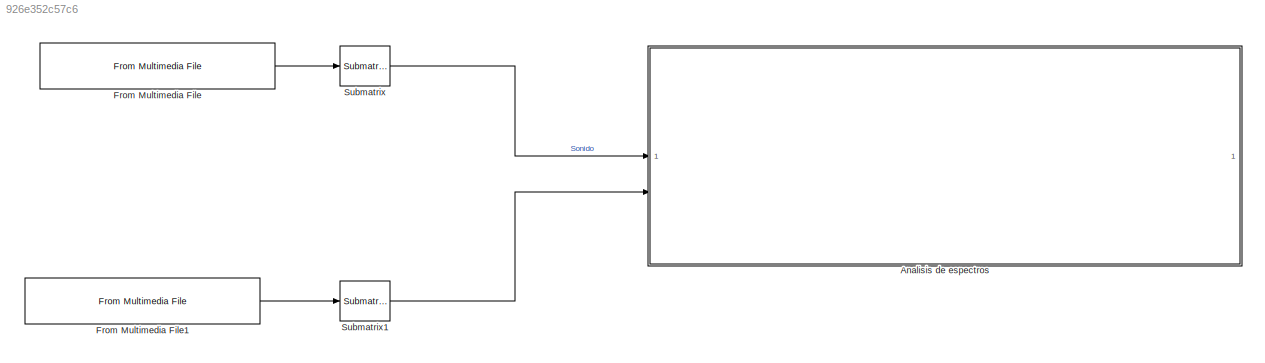
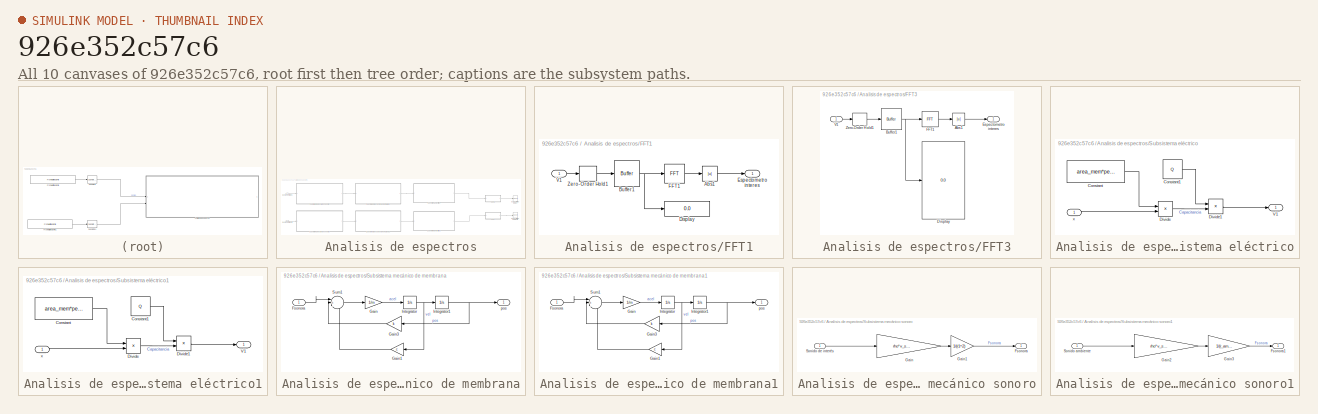
[diagram: thumbnail index - all 10 canvases of the model, root first then tree order]
MODEL slx_926e352c57c6
KIND model
CONFIG AbsTol = auto
CONFIG EnableMultiTasking = off
CONFIG FixedStep = auto
CONFIG MaxStep = auto
CONFIG MinStep = auto
CONFIG RelTol = 1e-3
CONFIG SampleTimeConstraint = Unconstrained
CONFIG SolverName = VariableStepAuto
CONFIG StartTime = 0.0
CONFIG StopTime = 5
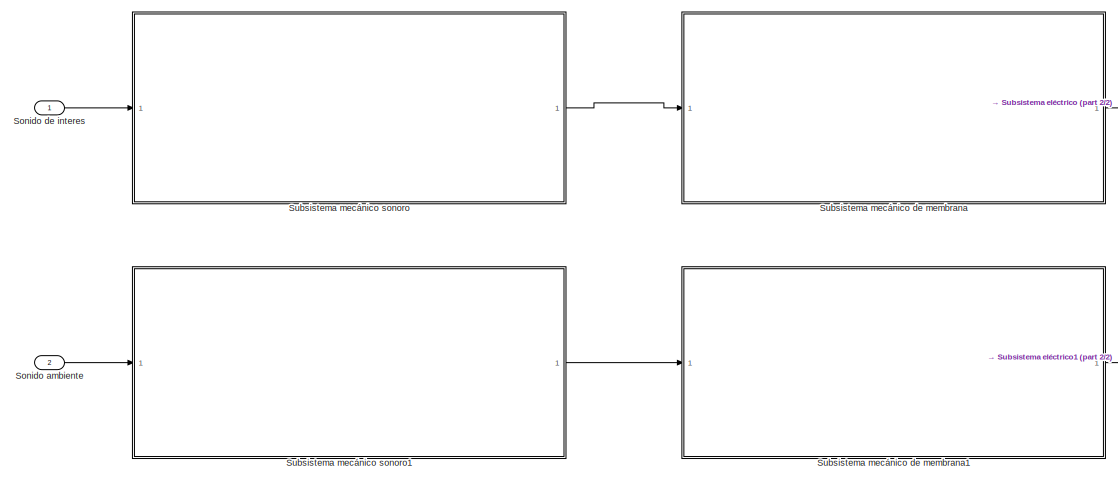
[diagram: Analisis de espectros - part 1/2, left side, full height]
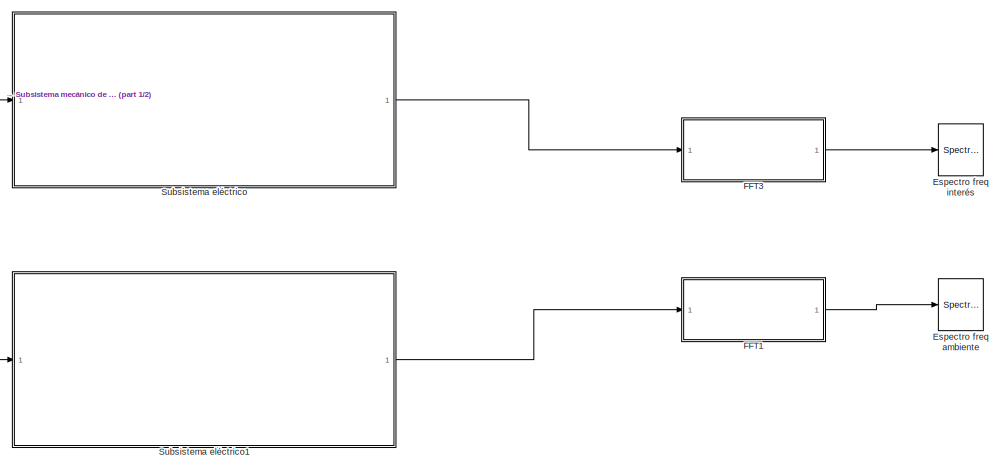
[diagram: Analisis de espectros - part 2/2, right side, full height]
BLOCK [SubSystem] Analisis de espectros
BLOCK [SpectrumAnalyzer] Analisis de espectros/Espectro freq ambiente
  DefaultConfigurationName = spbscopes.SpectrumAnalyzerBlockCfg
  FrequencyInputRBWFromPort = 0
  FrequencyInputRBWPort = 0
  FrequencySpan = Start and stop frequencies
  FrequencyVectorFromPort = 0
  FrequencyVectorPort = 0
  GraphicalSettings = {"GraphicalSettings":{"Style":{"BackgroundColor":[0.1568627450980392,0.1568627450980392,0.1568627450980392],"AxesColor":[0,0,0],"LabelsColor":[0.6862745098039216,0.6862745098039216,0.6862745098039216],"PreserveColors":false,"Visible":[true],"LineStyle":["-"],"LineColor":[[1,1,0.06666666666666667]],"LineWidth":[1.5],"Marker":["none"],"FontSize":"small"},"Cursors":{"Enabled":false,"XLocation":[2,8],...<+831ch>
  InputDomain = Frequency
  IsFrequencyInputMode = 0
  PlotAsTwoSidedSpectrum = off
  SampleRate = 44.1e3
  SampleRateSource = Property
  ScopeFrameLocation = window
  ScopeSpecificationString = spbscopes.SpectrumAnalyzerBlockCfg('CurrentConfiguration', extmgr.ConfigurationSet(extmgr.Configuration('Core','General UI',true),extmgr.Configuration('Core','Source UI',true),extmgr.Configuration('Sources','WiredSimulink',true),extmgr.Configuration('Visuals','Spectrum',true,'AxesProperties',struct('Color',{[0 0 0],[0 0 0]},'XColor',{[0.686274509803922 0.686274509803922 0.686274509803922],[0.68627...<+1720ch>
  SelectedToolstripTab = spectrumAnalyzerToolstrip.spectrumTab
  SpectrumUnits = Auto
  StartFrequency = 20
  StopFrequency = 20e3
  WasSavedAsWebScope = on
  WindowPosition = [2.000000,50.000000,766.000000,785.000000,]
  YLimits = [-28.14249408,253.75918863]
BLOCK [SpectrumAnalyzer] Analisis de espectros/Espectro freq interés
  DefaultConfigurationName = spbscopes.SpectrumAnalyzerBlockCfg
  FrequencyInputRBWFromPort = 0
  FrequencyInputRBWPort = 0
  FrequencySpan = Start and stop frequencies
  FrequencyVectorFromPort = 0
  FrequencyVectorPort = 0
  GraphicalSettings = {"GraphicalSettings":{"Style":{"BackgroundColor":[0.1568627450980392,0.1568627450980392,0.1568627450980392],"AxesColor":[0,0,0],"LabelsColor":[0.6862745098039216,0.6862745098039216,0.6862745098039216],"PreserveColors":false,"Visible":[true],"LineStyle":["-"],"LineColor":[[1,1,0.06666666666666667]],"LineWidth":[1.5],"Marker":["none"],"FontSize":"small"},"Cursors":{"Enabled":false,"XLocation":[2,8],...<+831ch>
  InputDomain = Frequency
  IsFrequencyInputMode = 0
  PlotAsTwoSidedSpectrum = off
  SampleRate = 44.1e3
  SampleRateSource = Property
  ScopeFrameLocation = window
  ScopeSpecificationString = spbscopes.SpectrumAnalyzerBlockCfg('CurrentConfiguration', extmgr.ConfigurationSet(extmgr.Configuration('Core','General UI',true),extmgr.Configuration('Core','Source UI',true),extmgr.Configuration('Sources','WiredSimulink',true),extmgr.Configuration('Visuals','Spectrum',true,'AxesProperties',struct('Color',{[0 0 0],[0 0 0]},'XColor',{[0.686274509803922 0.686274509803922 0.686274509803922],[0.68627...<+1720ch>
  SpectrumUnits = Auto
  StartFrequency = 20
  StopFrequency = 20e3
  WasSavedAsWebScope = on
  WindowPosition = [770.000000,50.000000,766.000000,785.000000,]
  YLimits = [-27.7376388,249.75160585]
BLOCK [SubSystem] Analisis de espectros/FFT1
BLOCK [Abs] Analisis de espectros/FFT1/Abs1
  SaturateOnIntegerOverflow = off
BLOCK [Buffer] Analisis de espectros/FFT1/Buffer1
  N = ventana_fft_analisis
  OutputFrames = off
  V = ventana_fft_analisis-1
BLOCK [Display] Analisis de espectros/FFT1/Display
  Decimation = 1
BLOCK [Outport] Analisis de espectros/FFT1/Espectometro interes
BLOCK [Reference] Analisis de espectros/FFT1/FFT1  REF=dspxfrm3/FFT
  SourceBlock = dspxfrm3/FFT
  SourceType = FFT
BLOCK [Inport] Analisis de espectros/FFT1/V1
BLOCK [ZeroOrderHold] Analisis de espectros/FFT1/Zero-Order Hold1
  SampleTime = zoh_freq_analisis
BLOCK [SubSystem] Analisis de espectros/FFT3
BLOCK [Abs] Analisis de espectros/FFT3/Abs1
  SaturateOnIntegerOverflow = off
BLOCK [Buffer] Analisis de espectros/FFT3/Buffer1
  N = ventana_fft_analisis
  OutputFrames = off
  V = ventana_fft_analisis-1
BLOCK [Display] Analisis de espectros/FFT3/Display
  Decimation = 1
BLOCK [Outport] Analisis de espectros/FFT3/Espectometro interes
BLOCK [Reference] Analisis de espectros/FFT3/FFT1  REF=dspxfrm3/FFT
  SourceBlock = dspxfrm3/FFT
  SourceType = FFT
BLOCK [Inport] Analisis de espectros/FFT3/V1
BLOCK [ZeroOrderHold] Analisis de espectros/FFT3/Zero-Order Hold1
  SampleTime = zoh_freq_analisis
BLOCK [Inport] Analisis de espectros/Sonido ambiente
  Port = 2
BLOCK [Inport] Analisis de espectros/Sonido de interes
BLOCK [SubSystem] Analisis de espectros/Subsistema eléctrico
BLOCK [Constant] Analisis de espectros/Subsistema eléctrico/Constant
  Value = area_mem*perm
BLOCK [Constant] Analisis de espectros/Subsistema eléctrico/Constant1
  Value = Q
BLOCK [Product] Analisis de espectros/Subsistema eléctrico/Divide
  Inputs = */
BLOCK [Product] Analisis de espectros/Subsistema eléctrico/Divide1
  Inputs = */
BLOCK [Outport] Analisis de espectros/Subsistema eléctrico/V1
BLOCK [Inport] Analisis de espectros/Subsistema eléctrico/x
BLOCK [SubSystem] Analisis de espectros/Subsistema eléctrico1
BLOCK [Constant] Analisis de espectros/Subsistema eléctrico1/Constant
  Value = area_mem*perm
BLOCK [Constant] Analisis de espectros/Subsistema eléctrico1/Constant1
  Value = Q
BLOCK [Product] Analisis de espectros/Subsistema eléctrico1/Divide
  Inputs = */
BLOCK [Product] Analisis de espectros/Subsistema eléctrico1/Divide1
  Inputs = */
BLOCK [Outport] Analisis de espectros/Subsistema eléctrico1/V1
BLOCK [Inport] Analisis de espectros/Subsistema eléctrico1/x
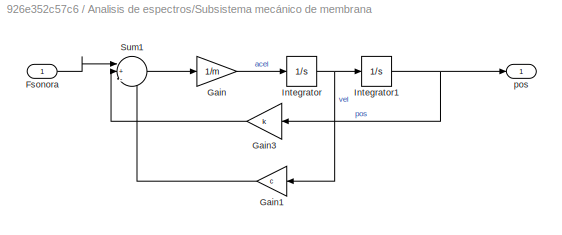
BLOCK [SubSystem] Analisis de espectros/Subsistema mecánico de membrana
BLOCK [Inport] Analisis de espectros/Subsistema mecánico de membrana/Fsonora
BLOCK [Gain] Analisis de espectros/Subsistema mecánico de membrana/Gain
  Gain = 1/m
BLOCK [Gain] Analisis de espectros/Subsistema mecánico de membrana/Gain1
  Gain = c
BLOCK [Gain] Analisis de espectros/Subsistema mecánico de membrana/Gain3
  Gain = k
BLOCK [Integrator] Analisis de espectros/Subsistema mecánico de membrana/Integrator
BLOCK [Integrator] Analisis de espectros/Subsistema mecánico de membrana/Integrator1
BLOCK [Sum] Analisis de espectros/Subsistema mecánico de membrana/Sum1
  Inputs = |+--
BLOCK [Outport] Analisis de espectros/Subsistema mecánico de membrana/pos
BLOCK [SubSystem] Analisis de espectros/Subsistema mecánico de membrana1
BLOCK [Inport] Analisis de espectros/Subsistema mecánico de membrana1/Fsonora
BLOCK [Gain] Analisis de espectros/Subsistema mecánico de membrana1/Gain
  Gain = 1/m
BLOCK [Gain] Analisis de espectros/Subsistema mecánico de membrana1/Gain1
  Gain = c
BLOCK [Gain] Analisis de espectros/Subsistema mecánico de membrana1/Gain3
  Gain = k
BLOCK [Integrator] Analisis de espectros/Subsistema mecánico de membrana1/Integrator
BLOCK [Integrator] Analisis de espectros/Subsistema mecánico de membrana1/Integrator1
BLOCK [Sum] Analisis de espectros/Subsistema mecánico de membrana1/Sum1
  Inputs = |+--
BLOCK [Outport] Analisis de espectros/Subsistema mecánico de membrana1/pos
BLOCK [SubSystem] Analisis de espectros/Subsistema mecánico sonoro
BLOCK [Outport] Analisis de espectros/Subsistema mecánico sonoro/Fsonora
BLOCK [Gain] Analisis de espectros/Subsistema mecánico sonoro/Gain
  Gain = rho*v_sonido*(area_mem)
BLOCK [Gain] Analisis de espectros/Subsistema mecánico sonoro/Gain1
  Gain = 1/(r1^2)
BLOCK [Inport] Analisis de espectros/Subsistema mecánico sonoro/Sonido de interés
BLOCK [SubSystem] Analisis de espectros/Subsistema mecánico sonoro1
BLOCK [Outport] Analisis de espectros/Subsistema mecánico sonoro1/Fsonora1
BLOCK [Gain] Analisis de espectros/Subsistema mecánico sonoro1/Gain2
  Gain = rho*v_sonido*(area_mem)
BLOCK [Gain] Analisis de espectros/Subsistema mecánico sonoro1/Gain3
  Gain = 1/(r_ambiente1^2)
BLOCK [Inport] Analisis de espectros/Subsistema mecánico sonoro1/Sonido ambiente
BLOCK [Reference] From Multimedia File  REF=dspvision/From Multimedia File
  LibrarySourceBlock = audiosources/From Multimedia File
  SourceBlock = dspvision/From Multimedia File
  SourceType = From Multimedia File
BLOCK [Reference] From Multimedia File1  REF=dspvision/From Multimedia File
  LibrarySourceBlock = audiosources/From Multimedia File
  SourceBlock = dspvision/From Multimedia File
  SourceType = From Multimedia File
BLOCK [Reference] Submatrix  REF=matrix_library/Submatrix
  LibrarySourceBlock = simulink/Matrix\nOperations/Submatrix
  SourceBlock = matrix_library/Submatrix
  SourceType = Submatrix
BLOCK [Reference] Submatrix1  REF=matrix_library/Submatrix
  LibrarySourceBlock = simulink/Matrix\nOperations/Submatrix
  SourceBlock = matrix_library/Submatrix
  SourceType = Submatrix
LINE Analisis de espectros/FFT1/Abs1:1 -> Analisis de espectros/FFT1/Espectometro interes:1
NET Analisis de espectros/FFT1/Buffer1:1 -> Analisis de espectros/FFT1/Display:1, Analisis de espectros/FFT1/FFT1:1
LINE Analisis de espectros/FFT1/FFT1:1 -> Analisis de espectros/FFT1/Abs1:1
LINE Analisis de espectros/FFT1/V1:1 -> Analisis de espectros/FFT1/Zero-Order Hold1:1
LINE Analisis de espectros/FFT1/Zero-Order Hold1:1 -> Analisis de espectros/FFT1/Buffer1:1
LINE Analisis de espectros/FFT1:1 -> Analisis de espectros/Espectro freq ambiente:1
LINE Analisis de espectros/FFT3/Abs1:1 -> Analisis de espectros/FFT3/Espectometro interes:1
NET Analisis de espectros/FFT3/Buffer1:1 -> Analisis de espectros/FFT3/Display:1, Analisis de espectros/FFT3/FFT1:1
LINE Analisis de espectros/FFT3/FFT1:1 -> Analisis de espectros/FFT3/Abs1:1
LINE Analisis de espectros/FFT3/V1:1 -> Analisis de espectros/FFT3/Zero-Order Hold1:1
LINE Analisis de espectros/FFT3/Zero-Order Hold1:1 -> Analisis de espectros/FFT3/Buffer1:1
LINE Analisis de espectros/FFT3:1 -> Analisis de espectros/Espectro freq interés:1
LINE Analisis de espectros/Sonido ambiente:1 -> Analisis de espectros/Subsistema mecánico sonoro1:1
LINE Analisis de espectros/Sonido de interes:1 -> Analisis de espectros/Subsistema mecánico sonoro:1
LINE Analisis de espectros/Subsistema eléctrico/Constant1:1 -> Analisis de espectros/Subsistema eléctrico/Divide1:1
LINE Analisis de espectros/Subsistema eléctrico/Constant:1 -> Analisis de espectros/Subsistema eléctrico/Divide:1
LINE Analisis de espectros/Subsistema eléctrico/Divide1:1 -> Analisis de espectros/Subsistema eléctrico/V1:1
LINE Analisis de espectros/Subsistema eléctrico/Divide:1 -> Analisis de espectros/Subsistema eléctrico/Divide1:2
LINE Analisis de espectros/Subsistema eléctrico/x:1 -> Analisis de espectros/Subsistema eléctrico/Divide:2
LINE Analisis de espectros/Subsistema eléctrico1/Constant1:1 -> Analisis de espectros/Subsistema eléctrico1/Divide1:1
LINE Analisis de espectros/Subsistema eléctrico1/Constant:1 -> Analisis de espectros/Subsistema eléctrico1/Divide:1
LINE Analisis de espectros/Subsistema eléctrico1/Divide1:1 -> Analisis de espectros/Subsistema eléctrico1/V1:1
LINE Analisis de espectros/Subsistema eléctrico1/Divide:1 -> Analisis de espectros/Subsistema eléctrico1/Divide1:2
LINE Analisis de espectros/Subsistema eléctrico1/x:1 -> Analisis de espectros/Subsistema eléctrico1/Divide:2
LINE Analisis de espectros/Subsistema eléctrico1:1 -> Analisis de espectros/FFT1:1
LINE Analisis de espectros/Subsistema eléctrico:1 -> Analisis de espectros/FFT3:1
LINE Analisis de espectros/Subsistema mecánico de membrana/Fsonora:1 -> Analisis de espectros/Subsistema mecánico de membrana/Sum1:1
LINE Analisis de espectros/Subsistema mecánico de membrana/Gain1:1 -> Analisis de espectros/Subsistema mecánico de membrana/Sum1:3
LINE Analisis de espectros/Subsistema mecánico de membrana/Gain3:1 -> Analisis de espectros/Subsistema mecánico de membrana/Sum1:2
LINE Analisis de espectros/Subsistema mecánico de membrana/Gain:1 -> Analisis de espectros/Subsistema mecánico de membrana/Integrator:1
NET Analisis de espectros/Subsistema mecánico de membrana/Integrator1:1 -> Analisis de espectros/Subsistema mecánico de membrana/Gain3:1, Analisis de espectros/Subsistema mecánico de membrana/pos:1
NET Analisis de espectros/Subsistema mecánico de membrana/Integrator:1 -> Analisis de espectros/Subsistema mecánico de membrana/Gain1:1, Analisis de espectros/Subsistema mecánico de membrana/Integrator1:1
LINE Analisis de espectros/Subsistema mecánico de membrana/Sum1:1 -> Analisis de espectros/Subsistema mecánico de membrana/Gain:1
LINE Analisis de espectros/Subsistema mecánico de membrana1/Fsonora:1 -> Analisis de espectros/Subsistema mecánico de membrana1/Sum1:1
LINE Analisis de espectros/Subsistema mecánico de membrana1/Gain1:1 -> Analisis de espectros/Subsistema mecánico de membrana1/Sum1:3
LINE Analisis de espectros/Subsistema mecánico de membrana1/Gain3:1 -> Analisis de espectros/Subsistema mecánico de membrana1/Sum1:2
LINE Analisis de espectros/Subsistema mecánico de membrana1/Gain:1 -> Analisis de espectros/Subsistema mecánico de membrana1/Integrator:1
NET Analisis de espectros/Subsistema mecánico de membrana1/Integrator1:1 -> Analisis de espectros/Subsistema mecánico de membrana1/Gain3:1, Analisis de espectros/Subsistema mecánico de membrana1/pos:1
NET Analisis de espectros/Subsistema mecánico de membrana1/Integrator:1 -> Analisis de espectros/Subsistema mecánico de membrana1/Gain1:1, Analisis de espectros/Subsistema mecánico de membrana1/Integrator1:1
LINE Analisis de espectros/Subsistema mecánico de membrana1/Sum1:1 -> Analisis de espectros/Subsistema mecánico de membrana1/Gain:1
LINE Analisis de espectros/Subsistema mecánico de membrana1:1 -> Analisis de espectros/Subsistema eléctrico1:1
LINE Analisis de espectros/Subsistema mecánico de membrana:1 -> Analisis de espectros/Subsistema eléctrico:1
LINE Analisis de espectros/Subsistema mecánico sonoro/Gain1:1 -> Analisis de espectros/Subsistema mecánico sonoro/Fsonora:1
LINE Analisis de espectros/Subsistema mecánico sonoro/Gain:1 -> Analisis de espectros/Subsistema mecánico sonoro/Gain1:1
LINE Analisis de espectros/Subsistema mecánico sonoro/Sonido de interés:1 -> Analisis de espectros/Subsistema mecánico sonoro/Gain:1
LINE Analisis de espectros/Subsistema mecánico sonoro1/Gain2:1 -> Analisis de espectros/Subsistema mecánico sonoro1/Gain3:1
LINE Analisis de espectros/Subsistema mecánico sonoro1/Gain3:1 -> Analisis de espectros/Subsistema mecánico sonoro1/Fsonora1:1
LINE Analisis de espectros/Subsistema mecánico sonoro1/Sonido ambiente:1 -> Analisis de espectros/Subsistema mecánico sonoro1/Gain2:1
LINE Analisis de espectros/Subsistema mecánico sonoro1:1 -> Analisis de espectros/Subsistema mecánico de membrana1:1
LINE Analisis de espectros/Subsistema mecánico sonoro:1 -> Analisis de espectros/Subsistema mecánico de membrana:1
LINE From Multimedia File1:1 -> Submatrix1:1
LINE From Multimedia File:1 -> Submatrix:1
LINE Submatrix1:1 -> Analisis de espectros:2
LINE Submatrix:1 -> Analisis de espectros:1
note: NET lines group one-source signal fan-out (src -> all destinations, sorted); 1:1 wires keep LINE
